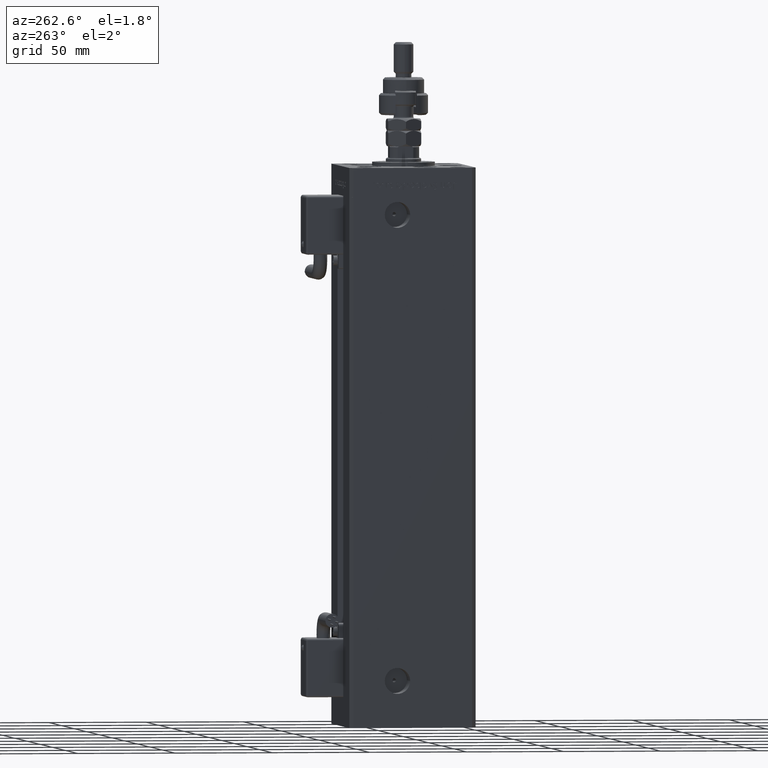
[diagram: clean part render]
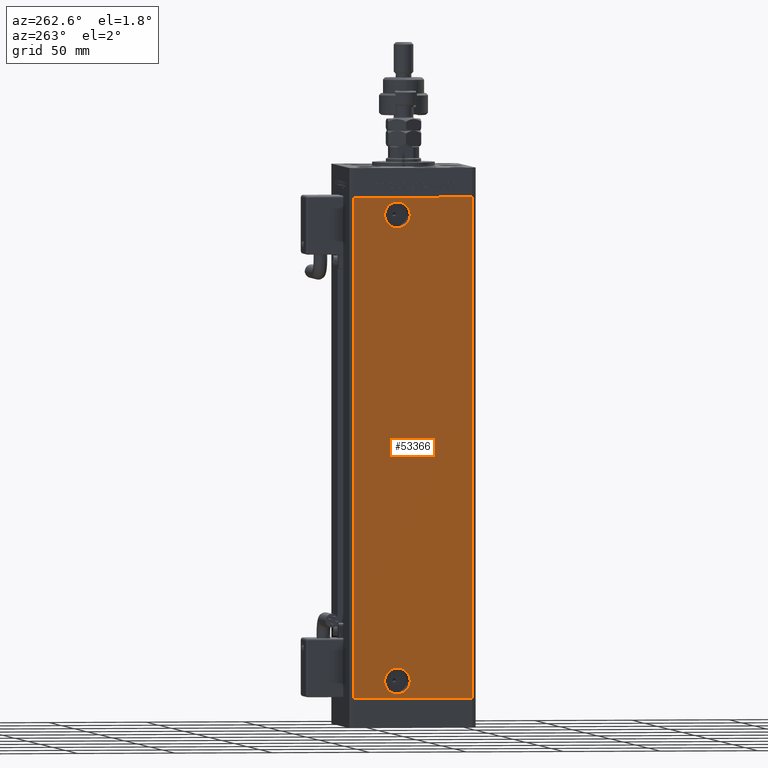
[diagram: same view with one face highlighted and labeled with its STEP entity id]
A machine part, auxiliary view. The second image highlights one B-rep face of the part: STEP entity #53366.
In plain terms, the highlighted planar face has unit normal (1, 0, 0).
Its self-contained STEP definition (entity closure, byte-faithful):
#228 = LINE ( 'NONE', #1386, #27708 ) ;
#481 = CARTESIAN_POINT ( 'NONE',  ( -37.50000000000000000, 1.419999999999947304, 247.0000000000000000 ) ) ;
#1184 = VERTEX_POINT ( 'NONE', #46862 ) ;
#1386 = CARTESIAN_POINT ( 'NONE',  ( -37.49999999999999289, -30.50000000000000000, 256.0000000000000000 ) ) ;
#2816 = CARTESIAN_POINT ( 'NONE',  ( -37.49999999999999289, -30.50000000000000000, 0.000000000000000000 ) ) ;
#2923 = CIRCLE ( 'NONE', #25396, 6.580000000000003624 ) ;
#3994 = EDGE_CURVE ( 'NONE', #21880, #13903, #36034, .T. ) ;
#5508 = PLANE ( 'NONE',  #6180 ) ;
#5820 = DIRECTION ( 'NONE',  ( -1.000000000000000000, -2.275047181608927644E-16, 0.000000000000000000 ) ) ;
#6180 = AXIS2_PLACEMENT_3D ( 'NONE', #13726, #31610, #18999 ) ;
#7297 = DIRECTION ( 'NONE',  ( 2.275047181608927644E-16, -1.000000000000000000, 0.000000000000000000 ) ) ;
#7622 = VECTOR ( 'NONE', #10943, 1000.000000000000000 ) ;
#8486 = ORIENTED_EDGE ( 'NONE', *, *, #32222, .F. ) ;
#9724 = ORIENTED_EDGE ( 'NONE', *, *, #38175, .T. ) ;
#10357 = DIRECTION ( 'NONE',  ( -1.000000000000000000, -2.275047181608927644E-16, 0.000000000000000000 ) ) ;
#10414 = EDGE_LOOP ( 'NONE', ( #49665, #15920, #8486, #9724 ) ) ;
#10818 = CIRCLE ( 'NONE', #29565, 6.580000000000044480 ) ;
#10943 = DIRECTION ( 'NONE',  ( -0.000000000000000000, -0.000000000000000000, -1.000000000000000000 ) ) ;
#12807 = VERTEX_POINT ( 'NONE', #50767 ) ;
#13160 = CARTESIAN_POINT ( 'NONE',  ( -37.50000000000000711, 30.50000000000000000, 256.0000000000000000 ) ) ;
#13683 = CARTESIAN_POINT ( 'NONE',  ( -37.50000000000000711, 30.50000000000000000, 256.0000000000000000 ) ) ;
#13726 = CARTESIAN_POINT ( 'NONE',  ( -37.50000000000000711, 30.50000000000000000, 256.0000000000000000 ) ) ;
#13903 = VERTEX_POINT ( 'NONE', #29577 ) ;
#14399 = DIRECTION ( 'NONE',  ( 0.000000000000000000, -1.000000000000000000, 0.000000000000000000 ) ) ;
#15920 = ORIENTED_EDGE ( 'NONE', *, *, #53434, .F. ) ;
#16419 = CARTESIAN_POINT ( 'NONE',  ( -37.50000000000000000, 1.419999999999988161, 9.000000000000000000 ) ) ;
#16577 = AXIS2_PLACEMENT_3D ( 'NONE', #31081, #39601, #49267 ) ;
#16822 = ORIENTED_EDGE ( 'NONE', *, *, #36862, .F. ) ;
#18095 = EDGE_CURVE ( 'NONE', #12807, #40642, #53009, .T. ) ;
#18999 = DIRECTION ( 'NONE',  ( -2.275047181608927644E-16, 1.000000000000000000, 0.000000000000000000 ) ) ;
#19242 = CIRCLE ( 'NONE', #16577, 6.580000000000003624 ) ;
#20609 = LINE ( 'NONE', #47586, #7622 ) ;
#20976 = VECTOR ( 'NONE', #33349, 1000.000000000000000 ) ;
#21035 = VERTEX_POINT ( 'NONE', #13683 ) ;
#21147 = EDGE_LOOP ( 'NONE', ( #34471, #16822 ) ) ;
#21880 = VERTEX_POINT ( 'NONE', #481 ) ;
#25396 = AXIS2_PLACEMENT_3D ( 'NONE', #45992, #5820, #55063 ) ;
#26170 = VECTOR ( 'NONE', #7297, 1000.000000000000000 ) ;
#27708 = VECTOR ( 'NONE', #45091, 1000.000000000000000 ) ;
#28448 = CARTESIAN_POINT ( 'NONE',  ( -37.50000000000000000, 7.999999999999991118, 247.0000000000000000 ) ) ;
#28516 = AXIS2_PLACEMENT_3D ( 'NONE', #51091, #10357, #42591 ) ;
#29565 = AXIS2_PLACEMENT_3D ( 'NONE', #28448, #39989, #14399 ) ;
#29577 = CARTESIAN_POINT ( 'NONE',  ( -37.50000000000000000, 14.58000000000003560, 247.0000000000000000 ) ) ;
#30727 = CARTESIAN_POINT ( 'NONE',  ( -37.50000000000000711, 30.50000000000000000, 0.000000000000000000 ) ) ;
#31081 = CARTESIAN_POINT ( 'NONE',  ( -37.50000000000000000, 7.999999999999991118, 9.000000000000000000 ) ) ;
#31610 = DIRECTION ( 'NONE',  ( 1.000000000000000000, 2.275047181608927644E-16, -0.000000000000000000 ) ) ;
#31835 = ORIENTED_EDGE ( 'NONE', *, *, #3994, .F. ) ;
#32222 = EDGE_CURVE ( 'NONE', #21035, #1184, #53312, .T. ) ;
#33075 = VERTEX_POINT ( 'NONE', #49805 ) ;
#33349 = DIRECTION ( 'NONE',  ( 2.275047181608927644E-16, -1.000000000000000000, 0.000000000000000000 ) ) ;
#34471 = ORIENTED_EDGE ( 'NONE', *, *, #37514, .F. ) ;
#35968 = EDGE_LOOP ( 'NONE', ( #31835, #50384 ) ) ;
#36034 = CIRCLE ( 'NONE', #28516, 6.580000000000044480 ) ;
#36862 = EDGE_CURVE ( 'NONE', #33075, #50330, #19242, .T. ) ;
#36888 = FACE_OUTER_BOUND ( 'NONE', #10414, .T. ) ;
#37514 = EDGE_CURVE ( 'NONE', #50330, #33075, #2923, .T. ) ;
#38175 = EDGE_CURVE ( 'NONE', #21035, #12807, #20609, .T. ) ;
#39601 = DIRECTION ( 'NONE',  ( -1.000000000000000000, -2.275047181608927644E-16, 0.000000000000000000 ) ) ;
#39989 = DIRECTION ( 'NONE',  ( -1.000000000000000000, -2.275047181608927644E-16, 0.000000000000000000 ) ) ;
#40642 = VERTEX_POINT ( 'NONE', #2816 ) ;
#42591 = DIRECTION ( 'NONE',  ( 0.000000000000000000, -1.000000000000000000, 0.000000000000000000 ) ) ;
#45091 = DIRECTION ( 'NONE',  ( -0.000000000000000000, -0.000000000000000000, -1.000000000000000000 ) ) ;
#45992 = CARTESIAN_POINT ( 'NONE',  ( -37.50000000000000000, 7.999999999999991118, 9.000000000000000000 ) ) ;
#46862 = CARTESIAN_POINT ( 'NONE',  ( -37.49999999999999289, -30.50000000000000000, 256.0000000000000000 ) ) ;
#47586 = CARTESIAN_POINT ( 'NONE',  ( -37.50000000000000711, 30.50000000000000000, 256.0000000000000000 ) ) ;
#48597 = EDGE_CURVE ( 'NONE', #13903, #21880, #10818, .T. ) ;
#49267 = DIRECTION ( 'NONE',  ( 0.000000000000000000, -1.000000000000000000, 0.000000000000000000 ) ) ;
#49499 = FACE_BOUND ( 'NONE', #35968, .T. ) ;
#49665 = ORIENTED_EDGE ( 'NONE', *, *, #18095, .T. ) ;
#49805 = CARTESIAN_POINT ( 'NONE',  ( -37.50000000000000000, 14.57999999999999652, 9.000000000000000000 ) ) ;
#50330 = VERTEX_POINT ( 'NONE', #16419 ) ;
#50384 = ORIENTED_EDGE ( 'NONE', *, *, #48597, .F. ) ;
#50767 = CARTESIAN_POINT ( 'NONE',  ( -37.50000000000000711, 30.50000000000000000, 0.000000000000000000 ) ) ;
#51091 = CARTESIAN_POINT ( 'NONE',  ( -37.50000000000000000, 7.999999999999991118, 247.0000000000000000 ) ) ;
#53009 = LINE ( 'NONE', #30727, #26170 ) ;
#53312 = LINE ( 'NONE', #13160, #20976 ) ;
#53366 = ADVANCED_FACE ( 'NONE', ( #55033, #49499, #36888 ), #5508, .F. ) ;
#53434 = EDGE_CURVE ( 'NONE', #1184, #40642, #228, .T. ) ;
#55033 = FACE_BOUND ( 'NONE', #21147, .T. ) ;
#55063 = DIRECTION ( 'NONE',  ( 0.000000000000000000, -1.000000000000000000, 0.000000000000000000 ) ) ;